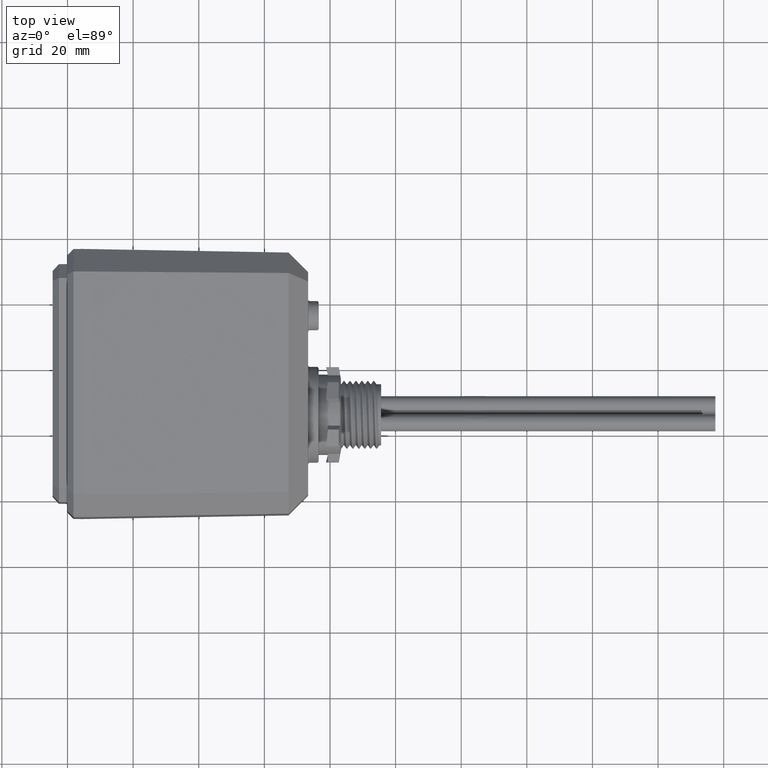
[diagram: clean part render]
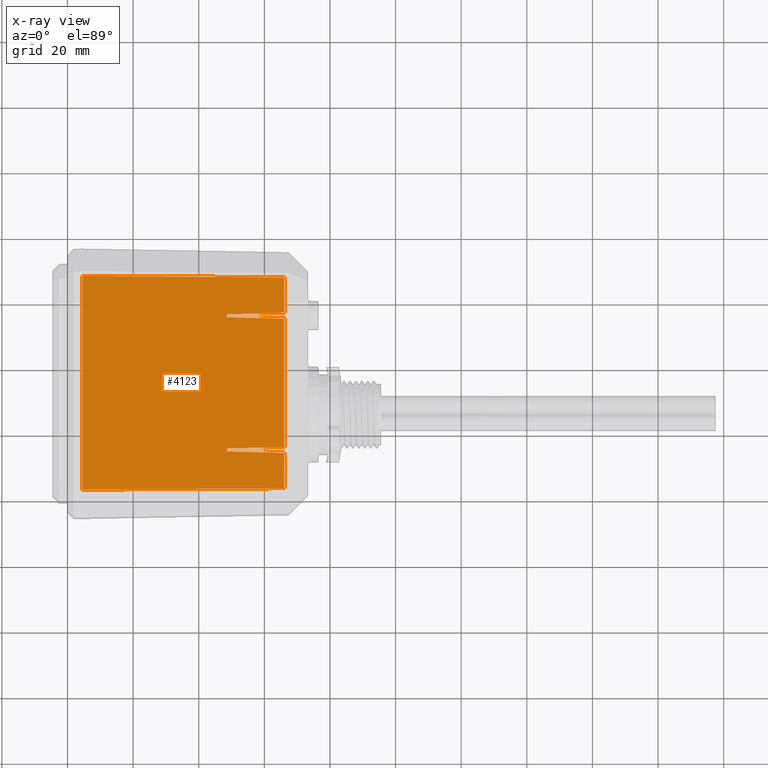
[diagram: x-ray — body ghosted, one internal face saturated and labeled with its STEP entity id]
A machine part, top view, then the same camera in x-ray: the body is ghosted and one INTERNAL B-rep face — a face not visible from any outside direction — is saturated and labeled: STEP entity #4123.
In plain terms, the highlighted planar face has unit normal (0.0175, -0, 0.9998).
Its self-contained STEP definition (entity closure, byte-faithful):
#122 = VECTOR ( 'NONE', #10936, 39.37007874015748100 ) ;
#952 = FACE_OUTER_BOUND ( 'NONE', #1232, .T. ) ;
#1158 = ORIENTED_EDGE ( 'NONE', *, *, #25753, .T. ) ;
#1184 = LINE ( 'NONE', #27634, #6416 ) ;
#1232 = EDGE_LOOP ( 'NONE', ( #12373, #12124, #18264, #6072, #7174, #16634, #22467, #26846, #1158, #24457, #25223, #13780 ) ) ;
#1566 = CARTESIAN_POINT ( 'NONE',  ( 0.2390117256789791600, 0.1309058984655870300, -1.419132603938814100 ) ) ;
#1885 = EDGE_CURVE ( 'NONE', #29935, #13891, #32898, .T. ) ;
#2093 = VERTEX_POINT ( 'NONE', #6486 ) ;
#2106 = EDGE_CURVE ( 'NONE', #29180, #19258, #13133, .T. ) ;
#2261 = CARTESIAN_POINT ( 'NONE',  ( 0.5422277618583564200, 0.1330981881955752300, -1.424425259537601900 ) ) ;
#2508 = DIRECTION ( 'NONE',  ( 0.9998215707699758000, 0.007228834559800784700, -0.01745195043442248100 ) ) ;
#2908 = VECTOR ( 'NONE', #26359, 39.37007874015748100 ) ;
#3220 = LINE ( 'NONE', #26432, #2908 ) ;
#3396 = LINE ( 'NONE', #26560, #3912 ) ;
#3837 = VERTEX_POINT ( 'NONE', #29210 ) ;
#3912 = VECTOR ( 'NONE', #26337, 39.37007874015748900 ) ;
#4021 = CARTESIAN_POINT ( 'NONE',  ( -0.4492251510949424300, 2.183465309163638200, -1.407119384568731500 ) ) ;
#4123 = ADVANCED_FACE ( 'NONE', ( #952 ), #20762, .F. ) ;
#4733 = EDGE_CURVE ( 'NONE', #13891, #18662, #10631, .T. ) ;
#4746 = VECTOR ( 'NONE', #6704, 39.37007874015748900 ) ;
#4850 = EDGE_CURVE ( 'NONE', #19258, #4866, #1184, .T. ) ;
#4866 = VERTEX_POINT ( 'NONE', #27002 ) ;
#5168 = VECTOR ( 'NONE', #6702, 39.37007874015748100 ) ;
#6072 = ORIENTED_EDGE ( 'NONE', *, *, #1885, .F. ) ;
#6175 = CARTESIAN_POINT ( 'NONE',  ( 0.5091208269540853400, 2.158370136546300600, -1.423847375839273600 ) ) ;
#6369 = CARTESIAN_POINT ( 'NONE',  ( 0.5779223222112162000, 0.6358460456720042000, -1.425048310406145100 ) ) ;
#6416 = VECTOR ( 'NONE', #27758, 39.37007874015748100 ) ;
#6486 = CARTESIAN_POINT ( 'NONE',  ( 0.2390117256789790200, 2.661508653194071300, -1.419132603938814100 ) ) ;
#6702 = DIRECTION ( 'NONE',  ( 1.411855008744344000E-018, 1.000000000000000000, 1.584696002065830100E-030 ) ) ;
#6704 = DIRECTION ( 'NONE',  ( -0.9995051766276819000, -0.02617296416316887400, 0.01744642775412583200 ) ) ;
#6919 = VERTEX_POINT ( 'NONE', #13964 ) ;
#7174 = ORIENTED_EDGE ( 'NONE', *, *, #13446, .T. ) ;
#7984 = CARTESIAN_POINT ( 'NONE',  ( -0.4492251510949424300, 2.218949242496020400, -1.407119384568731500 ) ) ;
#8512 = DIRECTION ( 'NONE',  ( 0.9995051766276819000, -0.02617296416316887400, -0.01744642775412583200 ) ) ;
#8830 = EDGE_CURVE ( 'NONE', #4866, #18662, #3396, .T. ) ;
#10631 = LINE ( 'NONE', #30197, #10947 ) ;
#10825 = LINE ( 'NONE', #11009, #122 ) ;
#10891 = CARTESIAN_POINT ( 'NONE',  ( -2.182225151094942600, 0.1134000540989687900, -1.376869757048130500 ) ) ;
#10936 = DIRECTION ( 'NONE',  ( -1.411855008744344000E-018, -1.000000000000000000, -1.584696002065830100E-030 ) ) ;
#10947 = VECTOR ( 'NONE', #28734, 39.37007874015748100 ) ;
#11009 = CARTESIAN_POINT ( 'NONE',  ( -0.4492251510949424300, 2.711219902414537600, -1.407119384568731500 ) ) ;
#11334 = LINE ( 'NONE', #6175, #11440 ) ;
#11440 = VECTOR ( 'NONE', #8512, 39.37007874015748900 ) ;
#12088 = CARTESIAN_POINT ( 'NONE',  ( -0.4492251510949424300, 0.6089492424960203400, -1.407119384568731500 ) ) ;
#12124 = ORIENTED_EDGE ( 'NONE', *, *, #8830, .T. ) ;
#12373 = ORIENTED_EDGE ( 'NONE', *, *, #4850, .T. ) ;
#13133 = LINE ( 'NONE', #6369, #4746 ) ;
#13446 = EDGE_CURVE ( 'NONE', #29935, #16910, #3220, .T. ) ;
#13780 = ORIENTED_EDGE ( 'NONE', *, *, #2106, .T. ) ;
#13891 = VERTEX_POINT ( 'NONE', #1566 ) ;
#13964 = CARTESIAN_POINT ( 'NONE',  ( 0.2390117256789790800, 2.165443192287414200, -1.419132603938814100 ) ) ;
#14655 = EDGE_CURVE ( 'NONE', #24657, #6919, #11334, .T. ) ;
#16106 = EDGE_CURVE ( 'NONE', #3837, #2093, #34738, .T. ) ;
#16634 = ORIENTED_EDGE ( 'NONE', *, *, #24096, .T. ) ;
#16910 = VERTEX_POINT ( 'NONE', #32737 ) ;
#17475 = AXIS2_PLACEMENT_3D ( 'NONE', #23091, #23353, #23897 ) ;
#17804 = VECTOR ( 'NONE', #27340, 39.37007874015748100 ) ;
#18264 = ORIENTED_EDGE ( 'NONE', *, *, #4733, .F. ) ;
#18562 = CARTESIAN_POINT ( 'NONE',  ( 0.2390117256789790800, 0.5554431922874143400, -1.419132603938814100 ) ) ;
#18662 = VERTEX_POINT ( 'NONE', #18562 ) ;
#19258 = VERTEX_POINT ( 'NONE', #12088 ) ;
#19469 = EDGE_CURVE ( 'NONE', #29180, #6919, #23052, .T. ) ;
#20158 = VERTEX_POINT ( 'NONE', #7984 ) ;
#20644 = LINE ( 'NONE', #28868, #20747 ) ;
#20747 = VECTOR ( 'NONE', #23493, 39.37007874015748100 ) ;
#20762 = PLANE ( 'NONE',  #17475 ) ;
#22467 = ORIENTED_EDGE ( 'NONE', *, *, #16106, .F. ) ;
#22994 = CARTESIAN_POINT ( 'NONE',  ( 0.2390117256789790800, 2.711219902414537600, -1.419132603938814100 ) ) ;
#23052 = LINE ( 'NONE', #30711, #17804 ) ;
#23091 = CARTESIAN_POINT ( 'NONE',  ( 0.5235932981003971200, 2.711219902414537600, -1.424099993762804300 ) ) ;
#23353 = DIRECTION ( 'NONE',  ( 0.01745240643728357400, -2.464026744330923500E-020, 0.9998476951563912700 ) ) ;
#23493 = DIRECTION ( 'NONE',  ( 0.9998215707699758000, -0.007228834559800787300, -0.01745195043442248100 ) ) ;
#23897 = DIRECTION ( 'NONE',  ( 0.9998476951563912700, -1.411639976384880100E-018, -0.01745240643728357400 ) ) ;
#24096 = EDGE_CURVE ( 'NONE', #16910, #2093, #20644, .T. ) ;
#24259 = CARTESIAN_POINT ( 'NONE',  ( 0.2390117256789790800, 0.6269713593722441300, -1.419132603938814100 ) ) ;
#24457 = ORIENTED_EDGE ( 'NONE', *, *, #14655, .T. ) ;
#24657 = VERTEX_POINT ( 'NONE', #4021 ) ;
#25223 = ORIENTED_EDGE ( 'NONE', *, *, #19469, .F. ) ;
#25753 = EDGE_CURVE ( 'NONE', #20158, #24657, #10825, .T. ) ;
#26337 = DIRECTION ( 'NONE',  ( 0.9995051766276819000, -0.02617296416316887400, -0.01744642775412583200 ) ) ;
#26359 = DIRECTION ( 'NONE',  ( 1.411855008744344000E-018, 1.000000000000000000, 1.584696002065830100E-030 ) ) ;
#26432 = CARTESIAN_POINT ( 'NONE',  ( -2.182225151094942600, 2.711219902414537600, -1.376869757048130500 ) ) ;
#26560 = CARTESIAN_POINT ( 'NONE',  ( 0.4670032057523526000, 0.5494730252717702200, -1.423112210026575200 ) ) ;
#26846 = ORIENTED_EDGE ( 'NONE', *, *, #28850, .T. ) ;
#27002 = CARTESIAN_POINT ( 'NONE',  ( -0.4492251510949424300, 0.5734653091636381400, -1.407119384568731500 ) ) ;
#27340 = DIRECTION ( 'NONE',  ( 1.411855008744344000E-018, 1.000000000000000000, 1.584696002065830100E-030 ) ) ;
#27634 = CARTESIAN_POINT ( 'NONE',  ( -0.4492251510949424300, 2.711219902414537600, -1.407119384568731500 ) ) ;
#27758 = DIRECTION ( 'NONE',  ( -1.411855008744344000E-018, -1.000000000000000000, -1.584696002065830100E-030 ) ) ;
#28734 = DIRECTION ( 'NONE',  ( 1.411855008744344000E-018, 1.000000000000000000, 1.584696002065830100E-030 ) ) ;
#28850 = EDGE_CURVE ( 'NONE', #3837, #20158, #34870, .T. ) ;
#28868 = CARTESIAN_POINT ( 'NONE',  ( 0.5257487773682758500, 2.659435508575646300, -1.424137617793376400 ) ) ;
#29180 = VERTEX_POINT ( 'NONE', #24259 ) ;
#29210 = CARTESIAN_POINT ( 'NONE',  ( 0.2390117256789790800, 2.236971359372244500, -1.419132603938814100 ) ) ;
#29935 = VERTEX_POINT ( 'NONE', #10891 ) ;
#30197 = CARTESIAN_POINT ( 'NONE',  ( 0.2390117256789790800, 2.711219902414537600, -1.419132603938814100 ) ) ;
#30711 = CARTESIAN_POINT ( 'NONE',  ( 0.2390117256789790800, 2.711219902414537600, -1.419132603938814100 ) ) ;
#30910 = VECTOR ( 'NONE', #2508, 39.37007874015748100 ) ;
#31588 = DIRECTION ( 'NONE',  ( -0.9995051766276819000, -0.02617296416316887400, 0.01744642775412583200 ) ) ;
#31630 = CARTESIAN_POINT ( 'NONE',  ( 0.5358047010094834100, 2.244743156946535000, -1.424313144593446700 ) ) ;
#32737 = CARTESIAN_POINT ( 'NONE',  ( -2.182225151094942600, 2.679014497560689500, -1.376869757048130500 ) ) ;
#32898 = LINE ( 'NONE', #2261, #30910 ) ;
#34738 = LINE ( 'NONE', #22994, #5168 ) ;
#34793 = VECTOR ( 'NONE', #31588, 39.37007874015748900 ) ;
#34870 = LINE ( 'NONE', #31630, #34793 ) ;